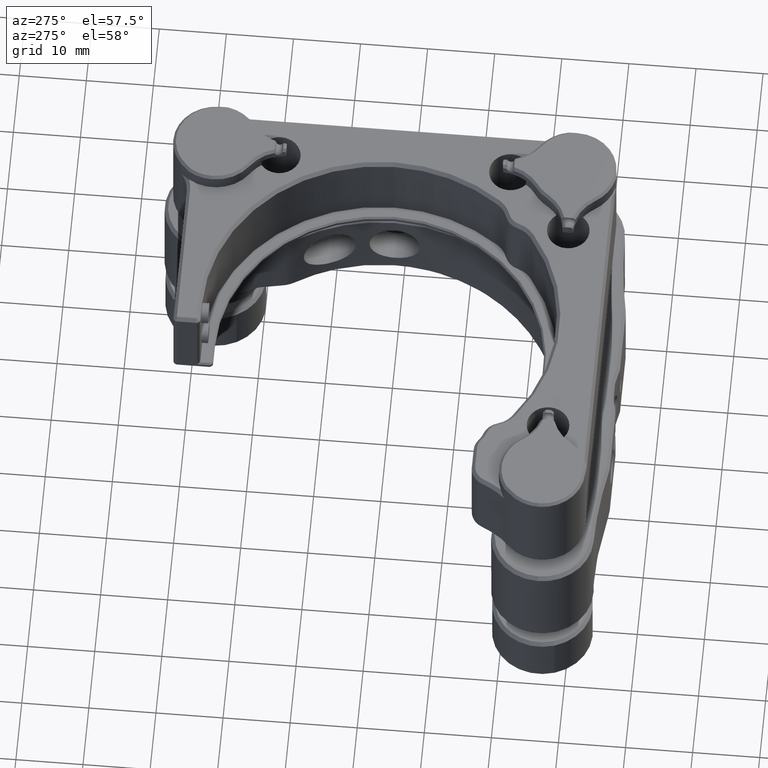
[diagram: clean part render]
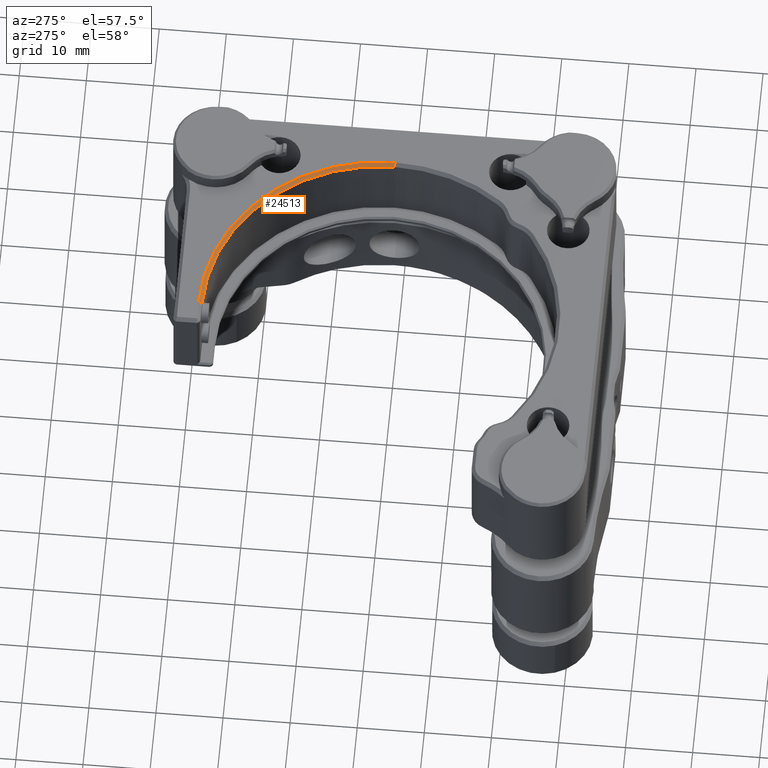
[diagram: same view with one face highlighted and labeled with its STEP entity id]
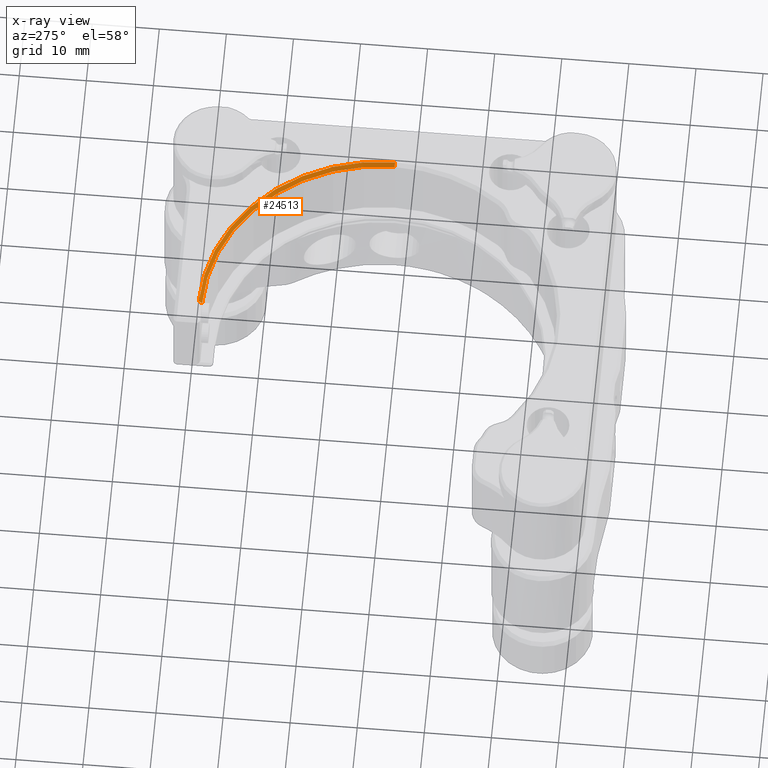
[diagram: x-ray of the same camera — body ghosted, the highlighted face saturated]
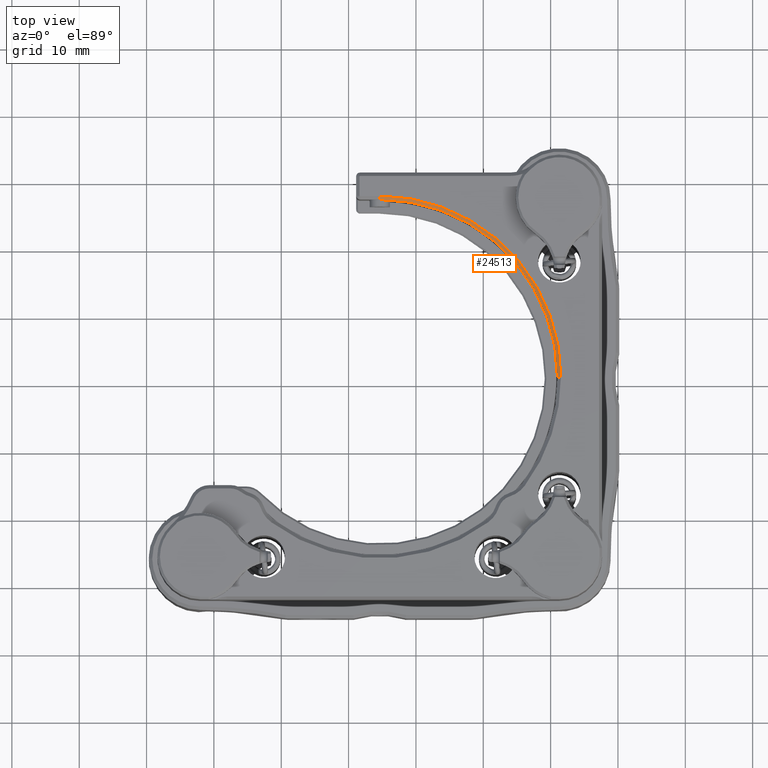
[diagram: same view with one face highlighted and labeled with its STEP entity id]
A machine part, auxiliary view. The second image highlights one B-rep face of the part: STEP entity #24513.
The next image is the same camera in x-ray: the body ghosted, the highlighted face saturated — about 0% of this face is hidden behind the body in this view.
A second angle (top view) of the same face is appended — the face is thin or edge-on in the first view.
In plain terms, the highlighted conical surface has half-angle 45 deg.
Its self-contained STEP definition (entity closure, byte-faithful):
#171 = DIRECTION ( 'NONE',  ( -1.000000000000000000, 0.000000000000000000, 0.000000000000000000 ) ) ;
#307 = CARTESIAN_POINT ( 'NONE',  ( 25.37656882689406856, 40.62924649506377506, 29.57856876018480463 ) ) ;
#636 = EDGE_CURVE ( 'NONE', #13262, #24348, #8620, .T. ) ;
#1565 = AXIS2_PLACEMENT_3D ( 'NONE', #307, #2645, #171 ) ;
#2645 = DIRECTION ( 'NONE',  ( 0.000000000000000000, 0.000000000000000000, -1.000000000000000000 ) ) ;
#3983 = AXIS2_PLACEMENT_3D ( 'NONE', #10835, #17296, #6415 ) ;
#5344 = LINE ( 'NONE', #7702, #16898 ) ;
#6415 = DIRECTION ( 'NONE',  ( -1.000000000000000000, 0.000000000000000000, 0.000000000000000000 ) ) ;
#6967 = ORIENTED_EDGE ( 'NONE', *, *, #10642, .T. ) ;
#7074 = ORIENTED_EDGE ( 'NONE', *, *, #23991, .F. ) ;
#7702 = CARTESIAN_POINT ( 'NONE',  ( 25.37656882689407212, 67.52924649506381627, 29.07856876018479753 ) ) ;
#8620 = CIRCLE ( 'NONE', #1565, 26.39999999999999858 ) ;
#8696 = CARTESIAN_POINT ( 'NONE',  ( 25.37656882689406856, 40.62924649506377506, 29.07856876018479753 ) ) ;
#9599 = AXIS2_PLACEMENT_3D ( 'NONE', #8696, #24133, #10761 ) ;
#10642 = EDGE_CURVE ( 'NONE', #25992, #24348, #5344, .T. ) ;
#10761 = DIRECTION ( 'NONE',  ( -1.000000000000000000, 7.738543387257124025E-16, 0.000000000000000000 ) ) ;
#10835 = CARTESIAN_POINT ( 'NONE',  ( 25.37656882689406856, 40.62924649506377506, 29.57856876018480463 ) ) ;
#12964 = CARTESIAN_POINT ( 'NONE',  ( -1.523431173105958880, 40.62924649506377506, 29.07856876018479753 ) ) ;
#13262 = VERTEX_POINT ( 'NONE', #27453 ) ;
#14339 = ORIENTED_EDGE ( 'NONE', *, *, #636, .F. ) ;
#15226 = FACE_OUTER_BOUND ( 'NONE', #19613, .T. ) ;
#15456 = EDGE_CURVE ( 'NONE', #13262, #16182, #26848, .T. ) ;
#16182 = VERTEX_POINT ( 'NONE', #12964 ) ;
#16659 = CONICAL_SURFACE ( 'NONE', #3983, 26.39999999999999858, 0.7853981633974691512 ) ;
#16898 = VECTOR ( 'NONE', #27371, 999.9999999999998863 ) ;
#17009 = CARTESIAN_POINT ( 'NONE',  ( 25.37656882689407212, 67.02924649506378785, 29.57856876018480818 ) ) ;
#17296 = DIRECTION ( 'NONE',  ( 0.000000000000000000, 0.000000000000000000, -1.000000000000000000 ) ) ;
#17577 = CIRCLE ( 'NONE', #9599, 26.90000000000002700 ) ;
#17893 = CARTESIAN_POINT ( 'NONE',  ( -1.023431173105930680, 40.62924649506377506, 29.57856876018480463 ) ) ;
#18643 = CARTESIAN_POINT ( 'NONE',  ( 25.37656882689407212, 67.52924649506381627, 29.07856876018479753 ) ) ;
#19613 = EDGE_LOOP ( 'NONE', ( #14339, #23784, #7074, #6967 ) ) ;
#23784 = ORIENTED_EDGE ( 'NONE', *, *, #15456, .T. ) ;
#23991 = EDGE_CURVE ( 'NONE', #25992, #16182, #17577, .T. ) ;
#24133 = DIRECTION ( 'NONE',  ( -0.000000000000000000, -0.000000000000000000, 1.000000000000000000 ) ) ;
#24348 = VERTEX_POINT ( 'NONE', #17009 ) ;
#24513 = ADVANCED_FACE ( 'NONE', ( #15226 ), #16659, .F. ) ;
#24938 = DIRECTION ( 'NONE',  ( -0.7071067811865622277, 0.000000000000000000, -0.7071067811865328068 ) ) ;
#25992 = VERTEX_POINT ( 'NONE', #18643 ) ;
#26848 = LINE ( 'NONE', #17893, #28695 ) ;
#27371 = DIRECTION ( 'NONE',  ( 0.000000000000000000, -0.7071067811865574537, 0.7071067811865376918 ) ) ;
#27453 = CARTESIAN_POINT ( 'NONE',  ( -1.023431173105930680, 40.62924649506377506, 29.57856876018480463 ) ) ;
#28695 = VECTOR ( 'NONE', #24938, 1000.000000000000000 ) ;